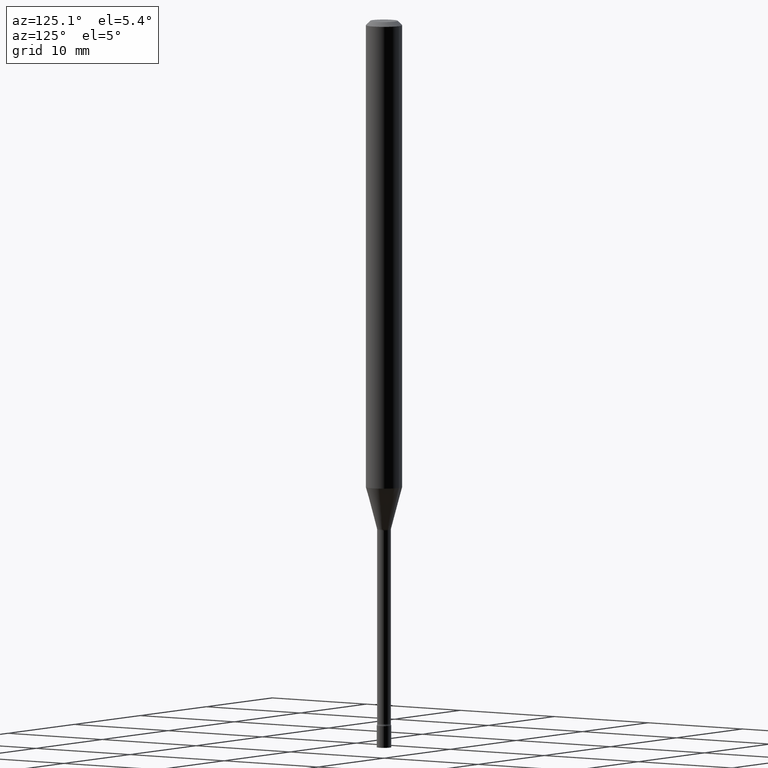
[diagram: clean part render]
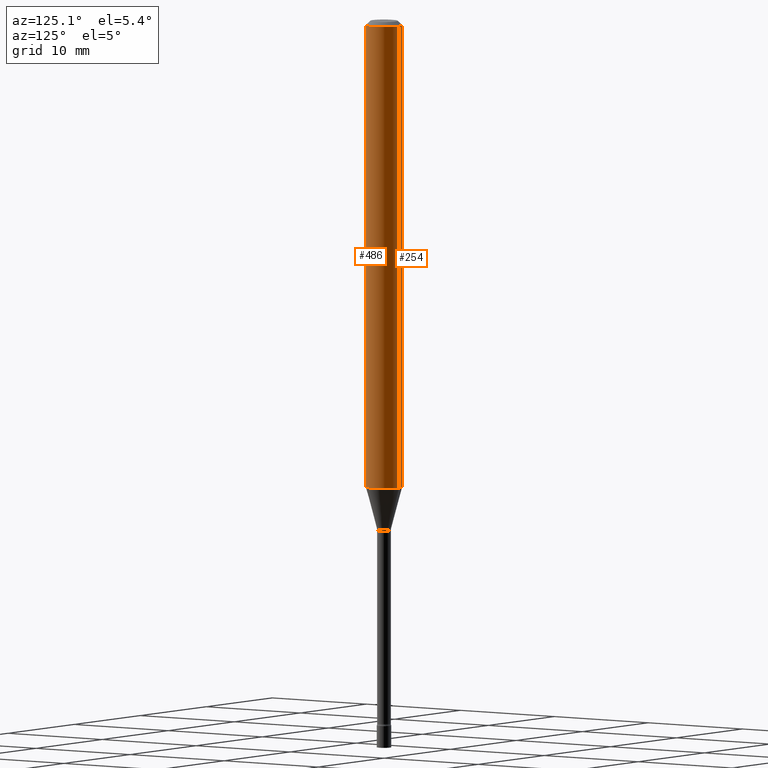
[diagram: same view with one multi-face feature highlighted, each face labeled with its STEP entity id]
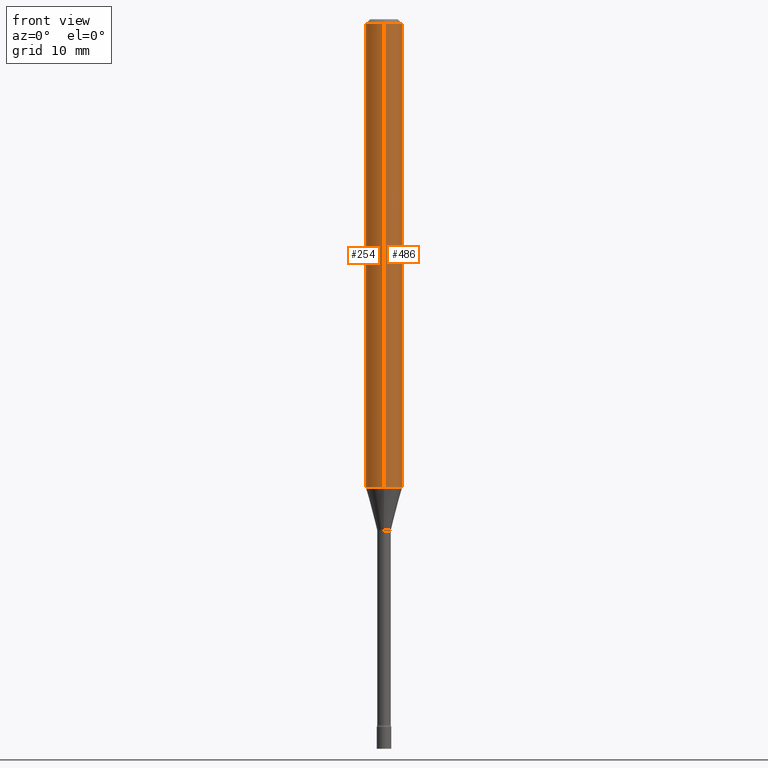
[diagram: same view with one multi-face feature highlighted, each face labeled with its STEP entity id]
A machine part, auxiliary view. The highlighted faces form ONE feature: a constant-radius fillet chain: 2 tangent blend faces with common blend radius 1.5875 mm. The faces share edges in the B-rep.
A second angle (front view) of the same feature is appended — it is thin or edge-on in the first view.
Their STEP definitions:
[1] entity #486 (Cylinder):
#1 = EDGE_CURVE ( 'NONE', #455, #389, #294, .T. ) ;
#10 = ORIENTED_EDGE ( 'NONE', *, *, #1, .F. ) ;
#25 = CARTESIAN_POINT ( 'NONE',  ( 4.440892098501020592E-16, 0.06249999999999995143, -0.01500000000000024751 ) ) ;
#29 = CIRCLE ( 'NONE', #212, 0.06250000000000000000 ) ;
#33 = CARTESIAN_POINT ( 'NONE',  ( 3.923617679042957969E-29, -5.601928482122645795E-15, -1.604450018504814279 ) ) ;
#50 = AXIS2_PLACEMENT_3D ( 'NONE', #369, #250, #381 ) ;
#60 = VECTOR ( 'NONE', #469, 39.37007874015748143 ) ;
#62 = ORIENTED_EDGE ( 'NONE', *, *, #198, .T. ) ;
#65 = CARTESIAN_POINT ( 'NONE',  ( 0.000000000000000000, 0.000000000000000000, 0.000000000000000000 ) ) ;
#70 = VERTEX_POINT ( 'NONE', #25 ) ;
#88 = CARTESIAN_POINT ( 'NONE',  ( 4.440892098500625669E-16, 0.06250000000000000000, -2.182184088594685165E-16 ) ) ;
#114 = VECTOR ( 'NONE', #256, 39.37007874015748143 ) ;
#153 = DIRECTION ( 'NONE',  ( -2.445459586643511658E-29, 3.491494541751496264E-15, 1.000000000000000000 ) ) ;
#163 = EDGE_CURVE ( 'NONE', #455, #443, #29, .T. ) ;
#180 = EDGE_LOOP ( 'NONE', ( #498, #62, #510, #10 ) ) ;
#191 = DIRECTION ( 'NONE',  ( -6.982962677686265922E-15, -1.000000000000000000, 4.370956789862821150E-15 ) ) ;
#198 = EDGE_CURVE ( 'NONE', #443, #70, #445, .T. ) ;
#203 = CARTESIAN_POINT ( 'NONE',  ( 4.440892098501015662E-16, 0.06249999999999437256, -1.604450018504814501 ) ) ;
#206 = EDGE_CURVE ( 'NONE', #389, #70, #275, .T. ) ;
#212 = AXIS2_PLACEMENT_3D ( 'NONE', #33, #153, #191 ) ;
#230 = CARTESIAN_POINT ( 'NONE',  ( -4.364351673553916201E-16, -0.06250000000000000000, 2.182184088594685165E-16 ) ) ;
#250 = DIRECTION ( 'NONE',  ( -2.445459586643511658E-29, 3.491494541751496264E-15, 1.000000000000000000 ) ) ;
#255 = FACE_OUTER_BOUND ( 'NONE', #180, .T. ) ;
#256 = DIRECTION ( 'NONE',  ( -2.445459586643511658E-29, 3.491494541751495870E-15, 1.000000000000000000 ) ) ;
#275 = CIRCLE ( 'NONE', #50, 0.06250000000000000000 ) ;
#293 = CYLINDRICAL_SURFACE ( 'NONE', #404, 0.06250000000000000000 ) ;
#294 = LINE ( 'NONE', #230, #114 ) ;
#369 = CARTESIAN_POINT ( 'NONE',  ( 3.668189379965275037E-31, -5.237241812627254676E-17, -0.01500000000000003067 ) ) ;
#381 = DIRECTION ( 'NONE',  ( -6.982962677686265922E-15, -1.000000000000000000, 3.483106191921935554E-15 ) ) ;
#389 = VERTEX_POINT ( 'NONE', #403 ) ;
#403 = CARTESIAN_POINT ( 'NONE',  ( -4.364351673553912750E-16, -0.06250000000000005551, -0.01499999999999981209 ) ) ;
#404 = AXIS2_PLACEMENT_3D ( 'NONE', #65, #409, #405 ) ;
#405 = DIRECTION ( 'NONE',  ( -6.982962677686265922E-15, -1.000000000000000000, 3.491494541751496264E-15 ) ) ;
#409 = DIRECTION ( 'NONE',  ( -2.445459586643511658E-29, 3.491494541751496264E-15, 1.000000000000000000 ) ) ;
#443 = VERTEX_POINT ( 'NONE', #203 ) ;
#445 = LINE ( 'NONE', #88, #60 ) ;
#455 = VERTEX_POINT ( 'NONE', #495 ) ;
#469 = DIRECTION ( 'NONE',  ( -2.445459586643511658E-29, 3.491494541751495870E-15, 1.000000000000000000 ) ) ;
#486 = ADVANCED_FACE ( 'NONE', ( #255 ), #293, .T. ) ;
#495 = CARTESIAN_POINT ( 'NONE',  ( -4.364351673553525715E-16, -0.06250000000000562050, -1.604450018504814057 ) ) ;
#498 = ORIENTED_EDGE ( 'NONE', *, *, #163, .T. ) ;
#510 = ORIENTED_EDGE ( 'NONE', *, *, #206, .F. ) ;
[2] entity #254 (Cylinder):
#1 = EDGE_CURVE ( 'NONE', #455, #389, #294, .T. ) ;
#4 = DIRECTION ( 'NONE',  ( -2.445459586643511658E-29, 3.491494541751496264E-15, 1.000000000000000000 ) ) ;
#8 = AXIS2_PLACEMENT_3D ( 'NONE', #292, #456, #131 ) ;
#25 = CARTESIAN_POINT ( 'NONE',  ( 4.440892098501020592E-16, 0.06249999999999995143, -0.01500000000000024751 ) ) ;
#37 = AXIS2_PLACEMENT_3D ( 'NONE', #357, #4, #192 ) ;
#45 = EDGE_LOOP ( 'NONE', ( #100, #462, #514, #249 ) ) ;
#60 = VECTOR ( 'NONE', #469, 39.37007874015748143 ) ;
#69 = CYLINDRICAL_SURFACE ( 'NONE', #79, 0.06250000000000000000 ) ;
#70 = VERTEX_POINT ( 'NONE', #25 ) ;
#79 = AXIS2_PLACEMENT_3D ( 'NONE', #229, #98, #174 ) ;
#88 = CARTESIAN_POINT ( 'NONE',  ( 4.440892098500625669E-16, 0.06250000000000000000, -2.182184088594685165E-16 ) ) ;
#98 = DIRECTION ( 'NONE',  ( -2.445459586643511658E-29, 3.491494541751496264E-15, 1.000000000000000000 ) ) ;
#100 = ORIENTED_EDGE ( 'NONE', *, *, #198, .F. ) ;
#102 = CIRCLE ( 'NONE', #8, 0.06250000000000000000 ) ;
#114 = VECTOR ( 'NONE', #256, 39.37007874015748143 ) ;
#131 = DIRECTION ( 'NONE',  ( -6.982962677686265922E-15, -1.000000000000000000, 4.370956789862821150E-15 ) ) ;
#135 = EDGE_CURVE ( 'NONE', #70, #389, #244, .T. ) ;
#174 = DIRECTION ( 'NONE',  ( -6.982962677686265922E-15, -1.000000000000000000, 3.491494541751496264E-15 ) ) ;
#192 = DIRECTION ( 'NONE',  ( -6.982962677686265922E-15, -1.000000000000000000, 3.483106191921935554E-15 ) ) ;
#198 = EDGE_CURVE ( 'NONE', #443, #70, #445, .T. ) ;
#203 = CARTESIAN_POINT ( 'NONE',  ( 4.440892098501015662E-16, 0.06249999999999437256, -1.604450018504814501 ) ) ;
#229 = CARTESIAN_POINT ( 'NONE',  ( 0.000000000000000000, 0.000000000000000000, 0.000000000000000000 ) ) ;
#230 = CARTESIAN_POINT ( 'NONE',  ( -4.364351673553916201E-16, -0.06250000000000000000, 2.182184088594685165E-16 ) ) ;
#244 = CIRCLE ( 'NONE', #37, 0.06250000000000000000 ) ;
#249 = ORIENTED_EDGE ( 'NONE', *, *, #135, .F. ) ;
#254 = ADVANCED_FACE ( 'NONE', ( #499 ), #69, .T. ) ;
#256 = DIRECTION ( 'NONE',  ( -2.445459586643511658E-29, 3.491494541751495870E-15, 1.000000000000000000 ) ) ;
#292 = CARTESIAN_POINT ( 'NONE',  ( 3.923617679042957969E-29, -5.601928482122645795E-15, -1.604450018504814279 ) ) ;
#294 = LINE ( 'NONE', #230, #114 ) ;
#317 = EDGE_CURVE ( 'NONE', #443, #455, #102, .T. ) ;
#357 = CARTESIAN_POINT ( 'NONE',  ( 3.668189379965275037E-31, -5.237241812627254676E-17, -0.01500000000000003067 ) ) ;
#389 = VERTEX_POINT ( 'NONE', #403 ) ;
#403 = CARTESIAN_POINT ( 'NONE',  ( -4.364351673553912750E-16, -0.06250000000000005551, -0.01499999999999981209 ) ) ;
#443 = VERTEX_POINT ( 'NONE', #203 ) ;
#445 = LINE ( 'NONE', #88, #60 ) ;
#455 = VERTEX_POINT ( 'NONE', #495 ) ;
#456 = DIRECTION ( 'NONE',  ( -2.445459586643511658E-29, 3.491494541751496264E-15, 1.000000000000000000 ) ) ;
#462 = ORIENTED_EDGE ( 'NONE', *, *, #317, .T. ) ;
#469 = DIRECTION ( 'NONE',  ( -2.445459586643511658E-29, 3.491494541751495870E-15, 1.000000000000000000 ) ) ;
#495 = CARTESIAN_POINT ( 'NONE',  ( -4.364351673553525715E-16, -0.06250000000000562050, -1.604450018504814057 ) ) ;
#499 = FACE_OUTER_BOUND ( 'NONE', #45, .T. ) ;
#514 = ORIENTED_EDGE ( 'NONE', *, *, #1, .T. ) ;